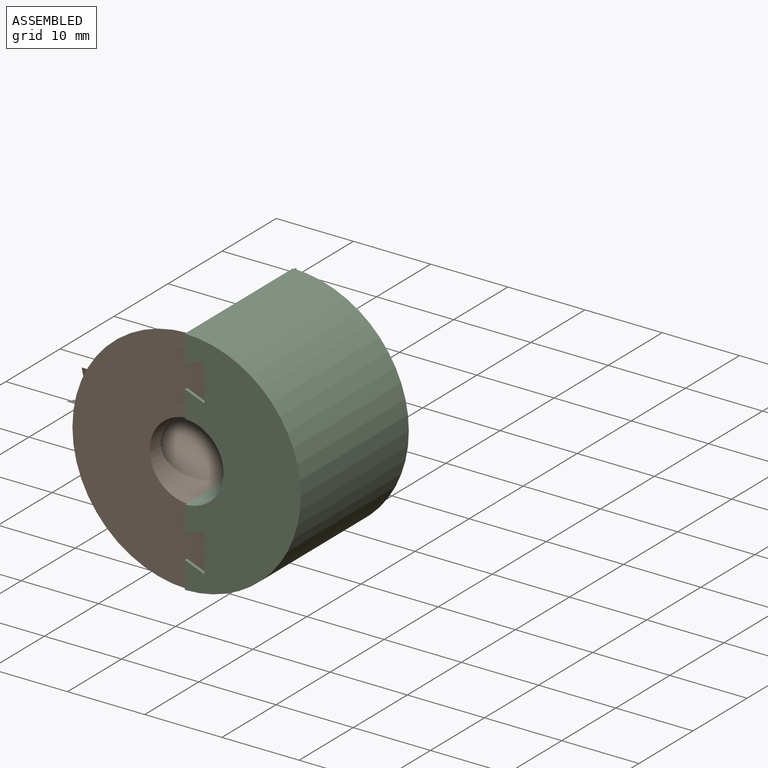
[diagram: assembled view]
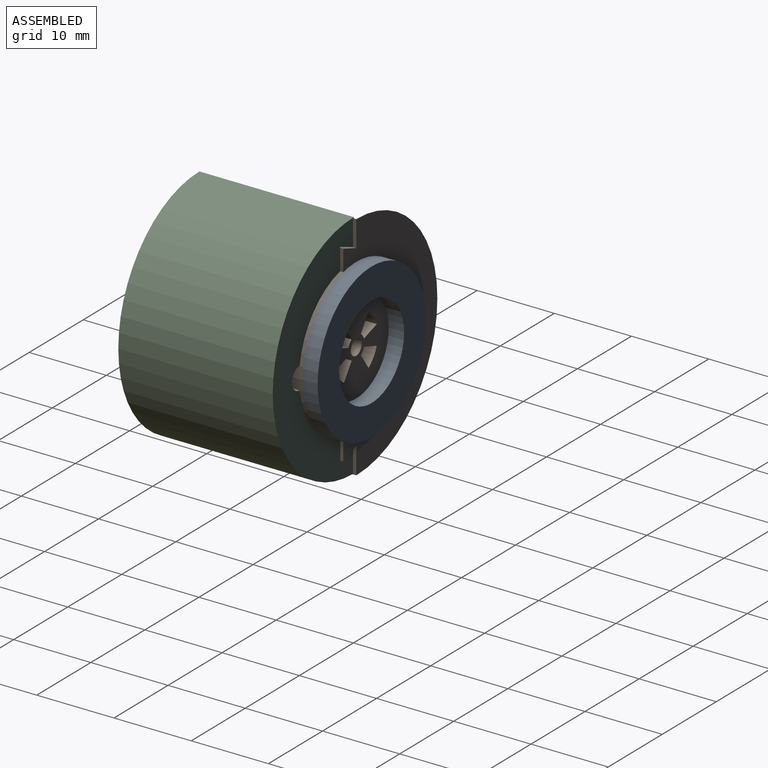
[diagram: assembled view, second angle]
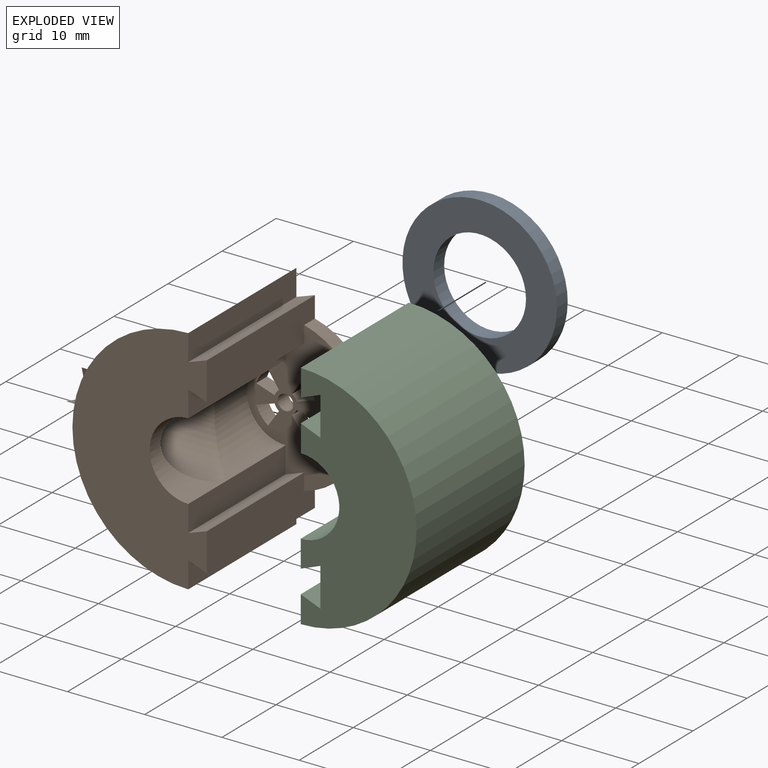
[diagram: exploded view]
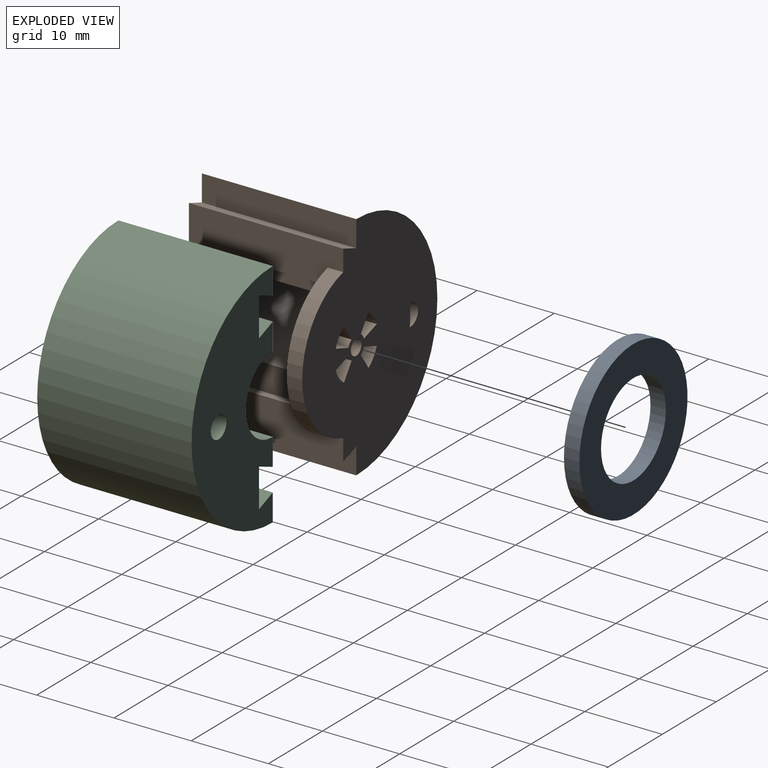
[diagram: exploded view, second angle]
ASSEMBLY  parts=3 mates=2
PART A: 4 faces, bbox 20x20x2 mm
  f0: cylinder r=6mm len=12mm, axis (0,0,-1), area 75.4mm2, adj f2,f3
  f1: cylinder r=10mm len=20mm, axis (0,0,-1), area 125.7mm2, adj f2,f3
  f2: plane 20x20mm, normal (0,0,1), area 201.1mm2, adj f0,f1
  f3: plane 20x20mm, normal (0,0,-1), area 201.1mm2, adj f0,f1
PART B: 60 faces, bbox 28x20x30 mm
  f0: cylinder r=10mm len=19.42mm, axis (0,1,0), area 53.1mm2, adj f1,f22,f23,f24
  f1: plane 19.42x15mm, normal (0,-1,0), area 166.2mm2, adj f0,f3,f4,f5,f6,f7,f8,f9
  f2: plane 2.89x1.45mm, normal (0,-1,0), area 3.2mm2, adj f21,f25
  f3: plane 2.06x2mm, normal (0.82,0,-0.57), area 5mm2, adj f1,f4,f17,f22
  f4: cylinder r=4mm len=2.02mm, axis (0,1,0), area 5.1mm2, adj f1,f3,f5,f22
  f5: plane 2.37x2mm, normal (-0.32,0,0.95), area 5mm2, adj f1,f4,f17,f22
  f6: cylinder r=4mm len=2.03mm, axis (0,1,0), area 5.2mm2, adj f1,f7,f18,f22
  f7: plane 2.06x2mm, normal (-0.82,0,-0.57), area 5mm2, adj f1,f6,f8,f22
  f8: cylinder r=1.5mm len=2mm, axis (0,1,0), area 1.9mm2, adj f1,f7,f18,f22
  f9: cylinder r=4mm len=2.02mm, axis (0,1,0), area 5.1mm2, adj f1,f10,f19,f22
  f10: plane 2.37x2mm, normal (0.32,0,-0.95), area 5mm2, adj f1,f9,f11,f22
  f11: cylinder r=1.5mm len=2mm, axis (0,1,0), area 1.9mm2, adj f1,f10,f19,f22
  f12: cylinder r=4mm len=2.03mm, axis (0,1,0), area 5.2mm2, adj f1,f13,f20,f22
  f13: plane 2.47x2mm, normal (0.82,0,0.57), area 6mm2, adj f1,f12,f14,f22
  f14: cylinder r=1mm len=2mm, axis (0,1,0), area 12.6mm2, adj f1,f13,f15,f22
  f15: plane 2x0.41mm, normal (-0.82,0,-0.57), area 1mm2, adj f1,f14,f16,f22
  f16: cylinder r=1.5mm len=2mm, axis (0,1,0), area 1.9mm2, adj f1,f15,f20,f22
  f17: cylinder r=1.5mm len=2mm, axis (0,1,0), area 1.9mm2, adj f1,f3,f5,f22
  f18: plane 2.37x2mm, normal (0.32,0,0.95), area 5mm2, adj f1,f6,f8,f22
  f19: plane 2.06x2mm, normal (-0.82,0,0.57), area 5mm2, adj f1,f9,f11,f22
  f20: plane 2.37x2mm, normal (-0.32,0,-0.95), area 5mm2, adj f1,f12,f16,f22
  f21: cylinder r=10mm len=2.89mm, axis (0,1,0), area 5.8mm2, adj f2,f22,f25
  f22: plane 30x25mm, normal (0,1,0), area 496.4mm2, adj f0,f3,f4,f5,f6,f7,f8,f9
  f23: plane 20x4.9mm, normal (1,0,0), area 93.7mm2, adj f0,f1,f22,f29,f32,f33
  f24: plane 20x4.9mm, normal (1,0,0), area 93.7mm2, adj f0,f1,f22,f33,f34,f37
  f25: cylinder r=1.45mm len=4mm, axis (0,1,0), area 27.8mm2, adj f2,f21,f22,f39
  f26: cylinder r=5mm len=10mm, axis (0,1,0), area 60mm2, adj f31,f33,f36,f40
  f27: cylinder r=5mm len=11mm, axis (0,1,0), area 122.8mm2, adj f1,f31,f36,f40
  f28: cylinder r=15mm len=30mm, axis (0,1,0), area 625.5mm2, adj f22,f30,f33,f35,f38
  f29: plane 20x2.4mm, normal (-0.33,0,0.94), area 50.9mm2, adj f22,f23,f30,f33
  f30: plane 20x3.4mm, normal (1,0,0), area 68mm2, adj f22,f28,f29,f33
  f31: plane 18x3.4mm, normal (1,0,0), area 61.2mm2, adj f1,f26,f27,f32,f33
  f32: plane 18x2.4mm, normal (-0.33,0,-0.94), area 45.8mm2, adj f1,f23,f31,f33
  f33: plane 30x17.4mm, normal (0,-1,0), area 333.6mm2, adj f23,f24,f26,f28,f29,f30,f31,f32
  f34: plane 20x2.4mm, normal (-0.33,0,-0.94), area 50.9mm2, adj f22,f24,f33,f35
  f35: plane 20x3.4mm, normal (1,0,0), area 68mm2, adj f22,f28,f33,f34
  f36: plane 18x3.4mm, normal (1,0,0), area 61.2mm2, adj f1,f26,f27,f33,f37
  f37: plane 18x2.4mm, normal (-0.33,0,0.94), area 45.8mm2, adj f1,f24,f33,f36
  f38: cylinder r=7mm len=14mm, axis (-1,0,0), area 207.2mm2, adj f28,f59
  f39: cone r=0mm half-angle=59deg, axis (0,1,0), area 7.7mm2, adj f25
  f40: cylinder r=5mm len=15mm, axis (-1,0,0), area 371.2mm2, adj f26,f27,f41
  f41: plane 10x10mm, normal (1,0,0), area 49.8mm2, adj f40,f42,f43,f44,f45,f46,f47,f48
  f42: plane 3x1.94mm, normal (0,-0.97,-0.25), area 6mm2, adj f41,f43,f54,f59
  f43: cylinder r=4mm len=3mm, axis (1,0,0), area 12.8mm2, adj f41,f42,f44,f59
  f44: plane 3x1.94mm, normal (0,0.25,0.97), area 6mm2, adj f41,f43,f54,f59
  f45: cylinder r=4mm len=3mm, axis (1,0,0), area 12.8mm2, adj f41,f46,f55,f59
  f46: plane 3x1.94mm, normal (0,0.97,-0.25), area 6mm2, adj f41,f45,f47,f59
  f47: cylinder r=2mm len=3mm, axis (1,0,0), area 6.4mm2, adj f41,f46,f55,f59
  f48: cylinder r=4mm len=3mm, axis (1,0,0), area 12.8mm2, adj f41,f49,f56,f59
  f49: plane 3x1.94mm, normal (0,-0.25,-0.97), area 6mm2, adj f41,f48,f50,f59
  f50: cylinder r=2mm len=3mm, axis (1,0,0), area 6.4mm2, adj f41,f49,f56,f59
  f51: cylinder r=4mm len=3mm, axis (1,0,0), area 12.8mm2, adj f41,f52,f57,f59
  f52: plane 3x1.94mm, normal (0,-0.97,0.25), area 6mm2, adj f41,f51,f53,f59
  f53: cylinder r=2mm len=3mm, axis (1,0,0), area 6.4mm2, adj f41,f52,f57,f59
  f54: cylinder r=2mm len=3mm, axis (1,0,0), area 6.4mm2, adj f41,f42,f44,f59
  f55: plane 3x1.94mm, normal (0,-0.25,0.97), area 6mm2, adj f41,f45,f47,f59
  f56: plane 3x1.94mm, normal (0,0.97,0.25), area 6mm2, adj f41,f48,f50,f59
  f57: plane 3x1.94mm, normal (0,0.25,-0.97), area 6mm2, adj f41,f51,f53,f59
  f58: cylinder r=1mm len=3mm, axis (1,0,0), area 18.8mm2, adj f41,f59
  f59: plane 14x14mm, normal (-1,0,0), area 125.2mm2, adj f38,f42,f43,f44,f45,f46,f47,f48
PART C: 16 faces, bbox 15x20x30 mm
  f0: plane 20x5mm, normal (1,0,0), area 100mm2, adj f1,f6,f7,f8
  f1: plane 20x2.55mm, normal (-0.37,0,-0.93), area 54.7mm2, adj f0,f2,f7,f8
  f2: plane 20x3.5mm, normal (1,0,0), area 70mm2, adj f1,f3,f7,f8
  f3: cylinder r=15mm len=30mm, axis (0,1,0), area 942.5mm2, adj f2,f7,f8,f11
  f4: cylinder r=5mm len=20mm, axis (0,1,0), area 314.2mm2, adj f5,f7,f8,f12
  f5: plane 20x3.5mm, normal (1,0,0), area 70mm2, adj f4,f6,f7,f8
  f6: plane 20x2.55mm, normal (-0.37,0,0.93), area 54.7mm2, adj f0,f5,f7,f8
  f7: plane 30x15mm, normal (0,-1,0), area 287.2mm2, adj f0,f1,f2,f3,f4,f5,f6,f9
  f8: plane 30x15mm, normal (0,1,0), area 293.8mm2, adj f0,f1,f2,f3,f4,f5,f6,f9
  f9: plane 20x5mm, normal (1,0,0), area 100mm2, adj f7,f8,f10,f13
  f10: plane 20x2.55mm, normal (-0.37,0,0.93), area 54.7mm2, adj f7,f8,f9,f11
  f11: plane 20x3.5mm, normal (1,0,0), area 70mm2, adj f3,f7,f8,f10
  f12: plane 20x3.5mm, normal (1,0,0), area 70mm2, adj f4,f7,f8,f13
  f13: plane 20x2.55mm, normal (-0.37,0,-0.93), area 54.7mm2, adj f7,f8,f9,f12
  f14: cone r=0mm half-angle=59deg, axis (0,-1,0), area 7.7mm2, adj f15
  f15: cylinder r=1.45mm len=4mm, axis (0,-1,0), area 36.4mm2, adj f7,f14
PLACE A rot(axis=(-1,0,0),90deg) t=(-53.31,7.06,15.08)mm
PLACE B rot(axis=(-0.89,0,-0.46),0deg) t=(-53.31,7.06,15.08)mm
PLACE C rot(axis=(0,0,1),180deg) t=(-53.45,-13.36,15.14)mm
MATE fastened B.f23 <-> C.f0  axis (1,0,0) through (-50.91,-3.36,25.14)mm
MATE parallel A.f1 <-> B.f28  axis (0,-1,0) through (-53.31,7.06,15.08)mm
